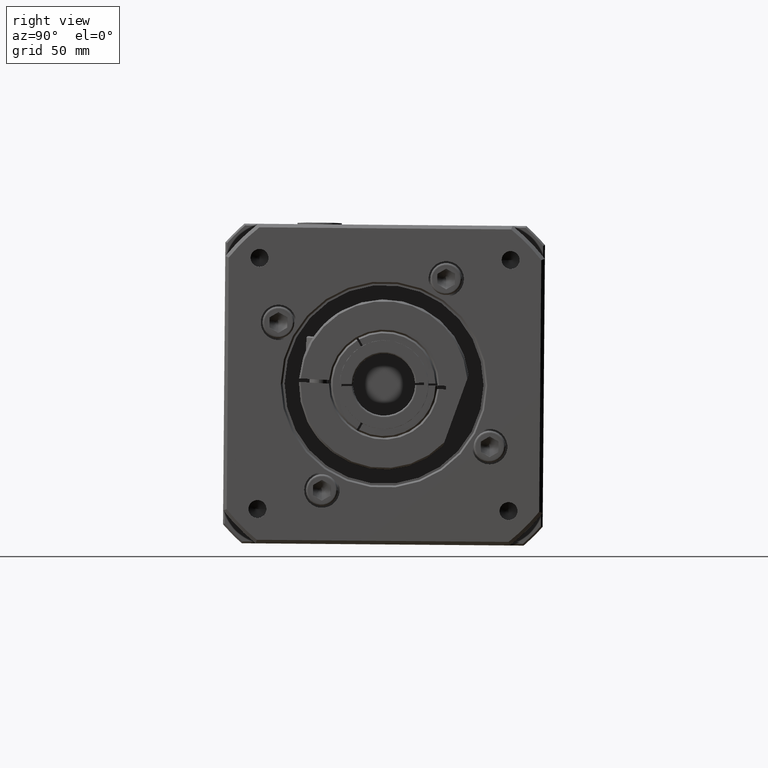
[diagram: clean part render]
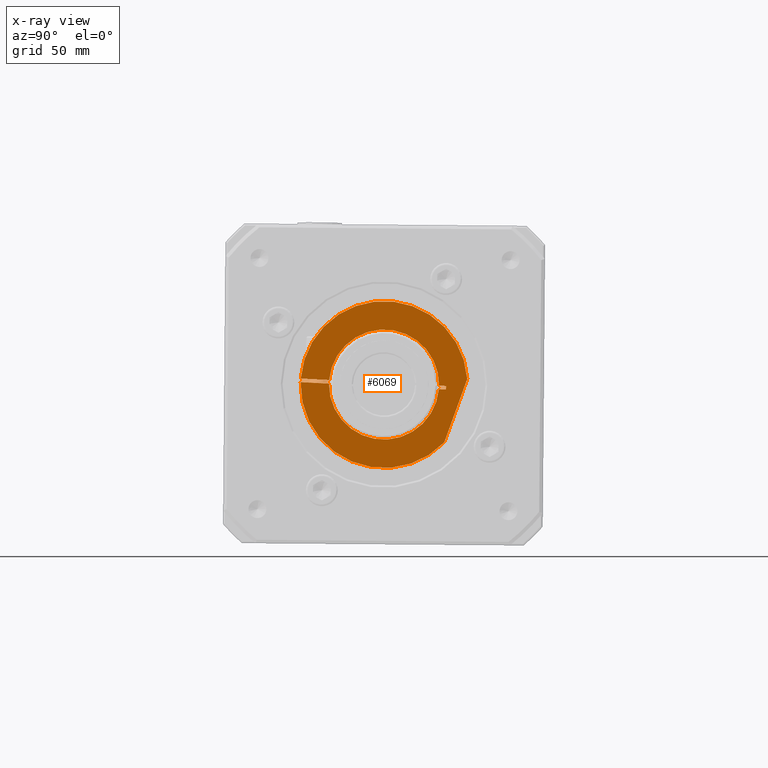
[diagram: x-ray — body ghosted, one internal face saturated and labeled with its STEP entity id]
A machine part, right view, then the same camera in x-ray: the body is ghosted and one INTERNAL B-rep face — a face not visible from any outside direction — is saturated and labeled: STEP entity #6069.
In plain terms, the highlighted planar face has unit normal (1, 0, -0).
Its self-contained STEP definition (entity closure, byte-faithful):
#272=LINE('',#9526,#576);
#281=LINE('',#9586,#585);
#282=LINE('',#9588,#586);
#283=LINE('',#9590,#587);
#284=LINE('',#9592,#588);
#285=LINE('',#9595,#589);
#576=VECTOR('',#7545,37.9473319220206);
#585=VECTOR('',#7586,16.0054937282236);
#586=VECTOR('',#7587,4.01613323034067);
#587=VECTOR('',#7588,2.);
#588=VECTOR('',#7589,4.01613323034067);
#589=VECTOR('',#7592,16.0054937282236);
#929=PLANE('',#6573);
#1345=FACE_OUTER_BOUND('',#1776,.T.);
#1776=EDGE_LOOP('',(#4355,#4356,#4357,#4358,#4359,#4360,#4361,#4362,#4363,
#4364));
#2367=CIRCLE('',#6569,47.);
#2368=CIRCLE('',#6571,31.);
#2370=CIRCLE('',#6574,47.);
#2371=CIRCLE('',#6575,31.);
#2761=VERTEX_POINT('',#9521);
#2762=VERTEX_POINT('',#9525);
#2776=VERTEX_POINT('',#9567);
#2777=VERTEX_POINT('',#9573);
#2778=VERTEX_POINT('',#9577);
#2779=VERTEX_POINT('',#9584);
#2780=VERTEX_POINT('',#9587);
#2781=VERTEX_POINT('',#9589);
#2782=VERTEX_POINT('',#9591);
#2783=VERTEX_POINT('',#9593);
#3382=EDGE_CURVE('',#2762,#2761,#272,.T.);
#3400=EDGE_CURVE('',#2762,#2776,#2367,.T.);
#3403=EDGE_CURVE('',#2777,#2778,#2368,.T.);
#3406=EDGE_CURVE('',#2779,#2761,#2370,.T.);
#3407=EDGE_CURVE('',#2779,#2778,#281,.T.);
#3408=EDGE_CURVE('',#2777,#2780,#282,.T.);
#3409=EDGE_CURVE('',#2780,#2781,#283,.T.);
#3410=EDGE_CURVE('',#2781,#2782,#284,.T.);
#3411=EDGE_CURVE('',#2783,#2782,#2371,.T.);
#3412=EDGE_CURVE('',#2783,#2776,#285,.T.);
#4355=ORIENTED_EDGE('',*,*,#3382,.T.);
#4356=ORIENTED_EDGE('',*,*,#3406,.F.);
#4357=ORIENTED_EDGE('',*,*,#3407,.T.);
#4358=ORIENTED_EDGE('',*,*,#3403,.F.);
#4359=ORIENTED_EDGE('',*,*,#3408,.T.);
#4360=ORIENTED_EDGE('',*,*,#3409,.T.);
#4361=ORIENTED_EDGE('',*,*,#3410,.T.);
#4362=ORIENTED_EDGE('',*,*,#3411,.F.);
#4363=ORIENTED_EDGE('',*,*,#3412,.T.);
#4364=ORIENTED_EDGE('',*,*,#3400,.F.);
#6069=ADVANCED_FACE('',(#1345),#929,.F.);
#6569=AXIS2_PLACEMENT_3D('',#9568,#7574,#7575);
#6571=AXIS2_PLACEMENT_3D('',#9578,#7578,#7579);
#6573=AXIS2_PLACEMENT_3D('',#9583,#7582,#7583);
#6574=AXIS2_PLACEMENT_3D('',#9585,#7584,#7585);
#6575=AXIS2_PLACEMENT_3D('',#9594,#7590,#7591);
#7545=DIRECTION('',(-2.36494219315969E-16,-0.340676332396174,-0.940180640379864));
#7574=DIRECTION('center_axis',(1.,2.29881697368084E-16,-3.34839348248164E-16));
#7575=DIRECTION('ref_axis',(-2.46629680413771E-16,0.998703337920996,-0.0509081803393305));
#7578=DIRECTION('center_axis',(-1.,-2.29881697368084E-16,3.34839348248164E-16));
#7579=DIRECTION('ref_axis',(2.46629680413771E-16,-0.998703337920996,0.0509081803393305));
#7582=DIRECTION('center_axis',(1.,2.29881697368084E-16,-3.34839348248164E-16));
#7583=DIRECTION('ref_axis',(-3.5527136788005E-16,-0.0509081803393315,-0.998703337920996));
#7584=DIRECTION('center_axis',(1.,2.29881697368084E-16,-3.34839348248164E-16));
#7585=DIRECTION('ref_axis',(-2.46629680413771E-16,0.998703337920996,-0.0509081803393305));
#7586=DIRECTION('',(-2.46629680413771E-16,0.998703337920996,-0.0509081803393307));
#7587=DIRECTION('',(-2.46629680413771E-16,0.998703337920996,-0.0509081803393307));
#7588=DIRECTION('',(3.22702315856406E-16,0.0509081803393305,0.998703337920996));
#7589=DIRECTION('',(2.46629680413771E-16,-0.998703337920996,0.0509081803393303));
#7590=DIRECTION('center_axis',(-1.,-2.29881697368084E-16,3.34839348248164E-16));
#7591=DIRECTION('ref_axis',(2.46629680413771E-16,-0.998703337920996,0.0509081803393305));
#7592=DIRECTION('',(2.46629680413771E-16,-0.998703337920996,0.0509081803393303));
#9521=CARTESIAN_POINT('',(22.802928487223,-119.472526783792,16.7047710998177));
#9525=CARTESIAN_POINT('',(22.802928487223,-106.544768920378,52.3821179269702));
#9526=CARTESIAN_POINT('',(22.802928487223,-116.642085114925,24.5160752842789));
#9567=CARTESIAN_POINT('',(22.802928487223,-200.313938384089,52.5833729826064));
#9568=CARTESIAN_POINT('Origin',(22.802928487223,-153.436415388419,49.1925268064294));
#9573=CARTESIAN_POINT('',(22.802928487223,-122.543632404201,46.6164911913888));
#9577=CARTESIAN_POINT('',(22.802928487223,-184.431014733317,49.7711557456281));
#9578=CARTESIAN_POINT('Origin',(22.802928487223,-153.436415388419,49.1925268064294));
#9583=CARTESIAN_POINT('Origin',(22.802928487223,-153.436415388419,49.1925268064294));
#9584=CARTESIAN_POINT('',(22.802928487223,-200.415754744767,50.5859663067645));
#9585=CARTESIAN_POINT('Origin',(22.802928487223,-153.436415388419,49.1925268064294));
#9586=CARTESIAN_POINT('',(22.802928487223,-136.010015155141,47.3029303125702));
#9587=CARTESIAN_POINT('',(22.802928487223,-118.532706741524,46.4120371566319));
#9588=CARTESIAN_POINT('',(22.802928487223,-136.010015155141,47.3029303125702));
#9589=CARTESIAN_POINT('',(22.802928487223,-118.430890380845,48.4094438324739));
#9590=CARTESIAN_POINT('',(22.802928487223,-118.456344471015,47.9100921635134));
#9591=CARTESIAN_POINT('',(22.802928487223,-122.441816043522,48.6138978672308));
#9592=CARTESIAN_POINT('',(22.802928487223,-194.117018658808,52.2674894815262));
#9593=CARTESIAN_POINT('',(22.802928487223,-184.329198372638,51.76856242147));
#9594=CARTESIAN_POINT('Origin',(22.802928487223,-153.436415388419,49.1925268064294));
#9595=CARTESIAN_POINT('',(22.802928487223,-194.117018658808,52.2674894815262));